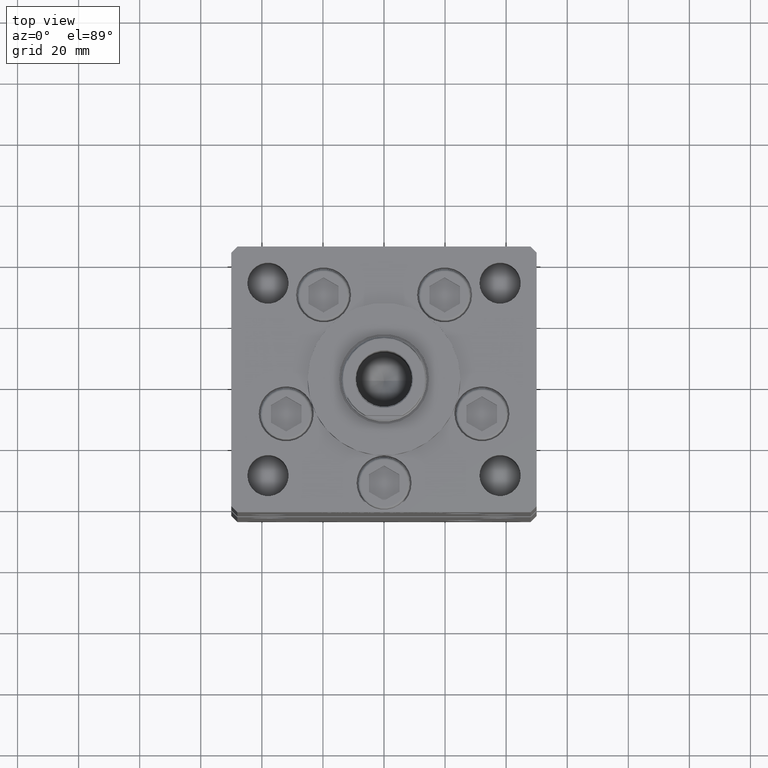
[diagram: clean part render]
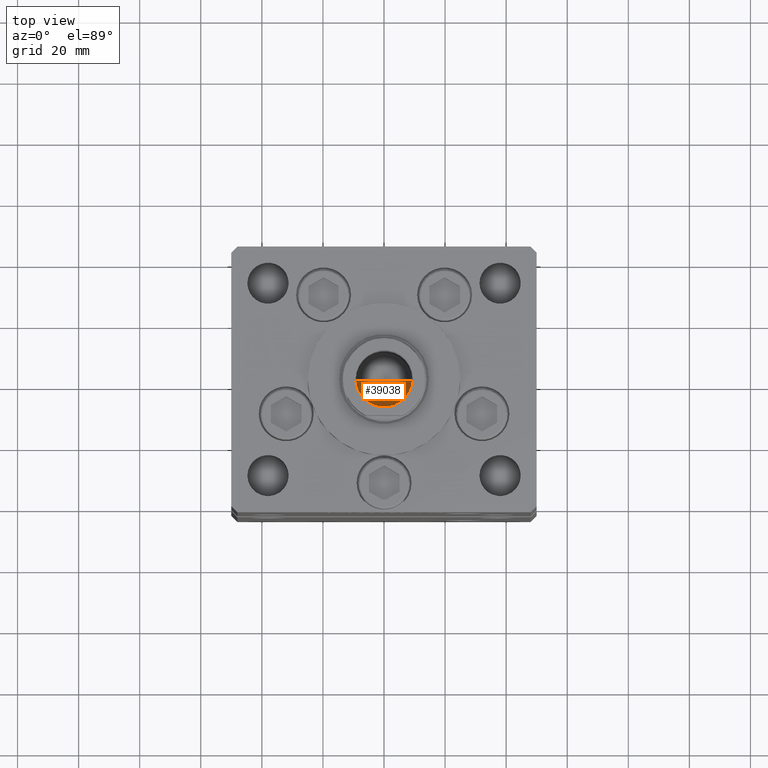
[diagram: same view with one face highlighted and labeled with its STEP entity id]
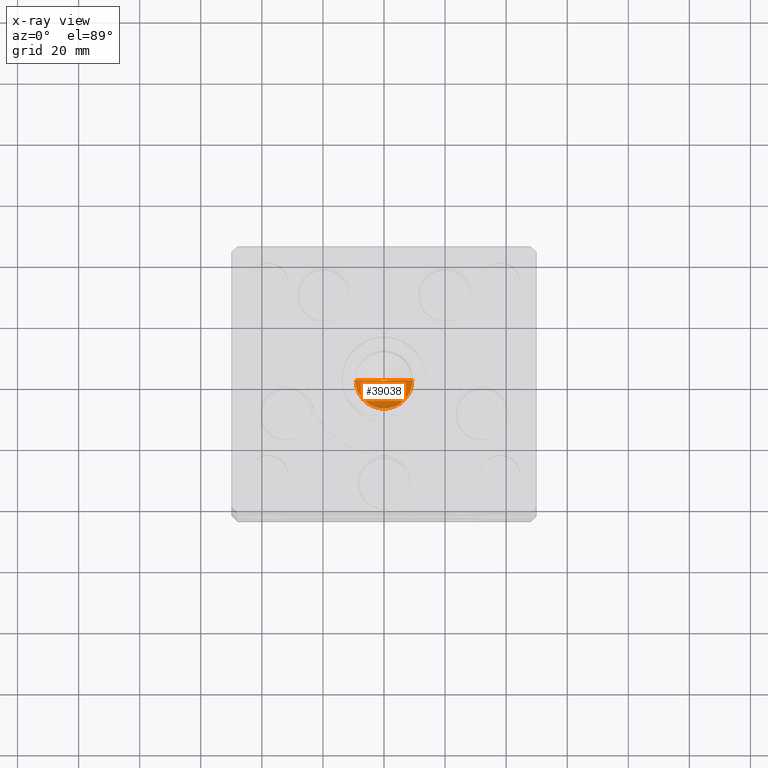
[diagram: x-ray of the same camera — body ghosted, the highlighted face saturated]
A machine part, top view. The second image highlights one B-rep face of the part: STEP entity #39038.
The next image is the same camera in x-ray: the body ghosted, the highlighted face saturated — about 9% of this face is hidden behind the body in this view.
In plain terms, the highlighted conical surface has half-angle 59 deg.
Its self-contained STEP definition (entity closure, byte-faithful):
#7418 = DIRECTION ( 'NONE',  ( -0.000000000000000000, -0.000000000000000000, 1.000000000000000000 ) ) ;
#7462 = EDGE_LOOP ( 'NONE', ( #41539, #15133, #39276 ) ) ;
#10195 = CARTESIAN_POINT ( 'NONE',  ( -1.046994375366439223E-14, 0.000000000000000000, 124.6920392739950643 ) ) ;
#14764 = CARTESIAN_POINT ( 'NONE',  ( 9.249999999999994671, 0.000000000000000000, 130.2500000000000000 ) ) ;
#14951 = CIRCLE ( 'NONE', #43287, 9.249999999999994671 ) ;
#15133 = ORIENTED_EDGE ( 'NONE', *, *, #35154, .T. ) ;
#16384 = VERTEX_POINT ( 'NONE', #29145 ) ;
#18496 = DIRECTION ( 'NONE',  ( -0.8571673007021117785, 1.049727191138617956E-16, 0.5150380749100550437 ) ) ;
#19619 = DIRECTION ( 'NONE',  ( 0.8571673007021117785, 0.000000000000000000, 0.5150380749100550437 ) ) ;
#22042 = EDGE_CURVE ( 'NONE', #33111, #40277, #31706, .T. ) ;
#22522 = CARTESIAN_POINT ( 'NONE',  ( -9.249999999999994671, 1.132798289211300909E-15, 130.2500000000000000 ) ) ;
#23353 = VECTOR ( 'NONE', #18496, 1000.000000000000000 ) ;
#25879 = DIRECTION ( 'NONE',  ( 1.000000000000000000, 0.000000000000000000, 0.000000000000000000 ) ) ;
#28235 = VECTOR ( 'NONE', #19619, 1000.000000000000000 ) ;
#28598 = CONICAL_SURFACE ( 'NONE', #40672, 9.249999999999994671, 1.029744258676653423 ) ;
#29145 = CARTESIAN_POINT ( 'NONE',  ( -9.249999999999994671, 1.132798289211300909E-15, 130.2500000000000000 ) ) ;
#31706 = LINE ( 'NONE', #14764, #28235 ) ;
#32684 = CARTESIAN_POINT ( 'NONE',  ( 0.000000000000000000, 0.000000000000000000, 130.2500000000000000 ) ) ;
#33111 = VERTEX_POINT ( 'NONE', #10195 ) ;
#34754 = DIRECTION ( 'NONE',  ( -0.000000000000000000, -0.000000000000000000, 1.000000000000000000 ) ) ;
#35154 = EDGE_CURVE ( 'NONE', #33111, #16384, #40719, .T. ) ;
#39038 = ADVANCED_FACE ( 'NONE', ( #53134 ), #28598, .F. ) ;
#39276 = ORIENTED_EDGE ( 'NONE', *, *, #51717, .T. ) ;
#40277 = VERTEX_POINT ( 'NONE', #46023 ) ;
#40672 = AXIS2_PLACEMENT_3D ( 'NONE', #32684, #7418, #49094 ) ;
#40719 = LINE ( 'NONE', #22522, #23353 ) ;
#41539 = ORIENTED_EDGE ( 'NONE', *, *, #22042, .F. ) ;
#43287 = AXIS2_PLACEMENT_3D ( 'NONE', #51177, #34754, #25879 ) ;
#46023 = CARTESIAN_POINT ( 'NONE',  ( 9.249999999999994671, 0.000000000000000000, 130.2500000000000000 ) ) ;
#49094 = DIRECTION ( 'NONE',  ( 1.000000000000000000, 0.000000000000000000, 0.000000000000000000 ) ) ;
#51177 = CARTESIAN_POINT ( 'NONE',  ( 0.000000000000000000, 0.000000000000000000, 130.2500000000000000 ) ) ;
#51717 = EDGE_CURVE ( 'NONE', #16384, #40277, #14951, .T. ) ;
#53134 = FACE_OUTER_BOUND ( 'NONE', #7462, .T. ) ;